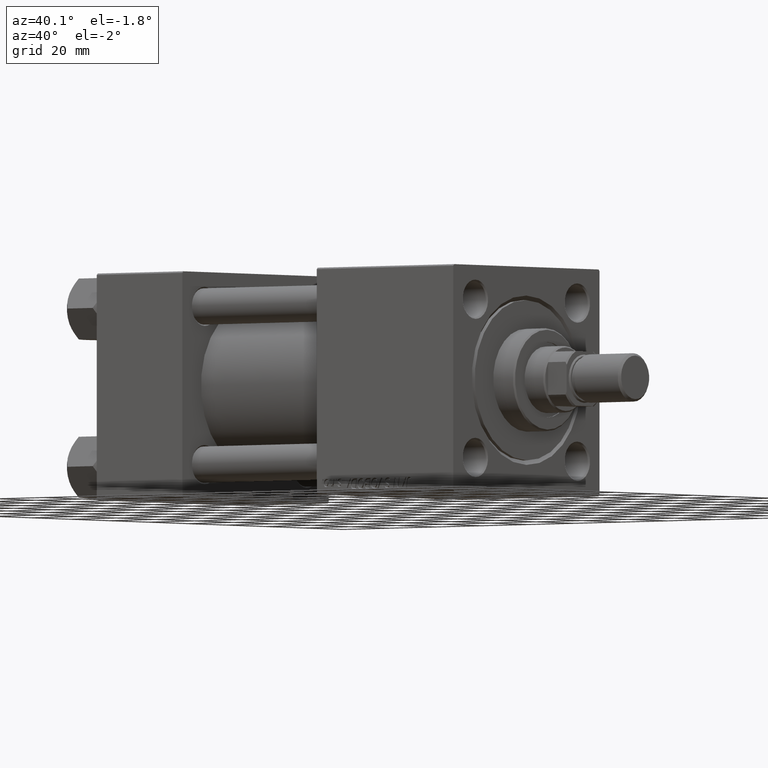
[diagram: clean part render]
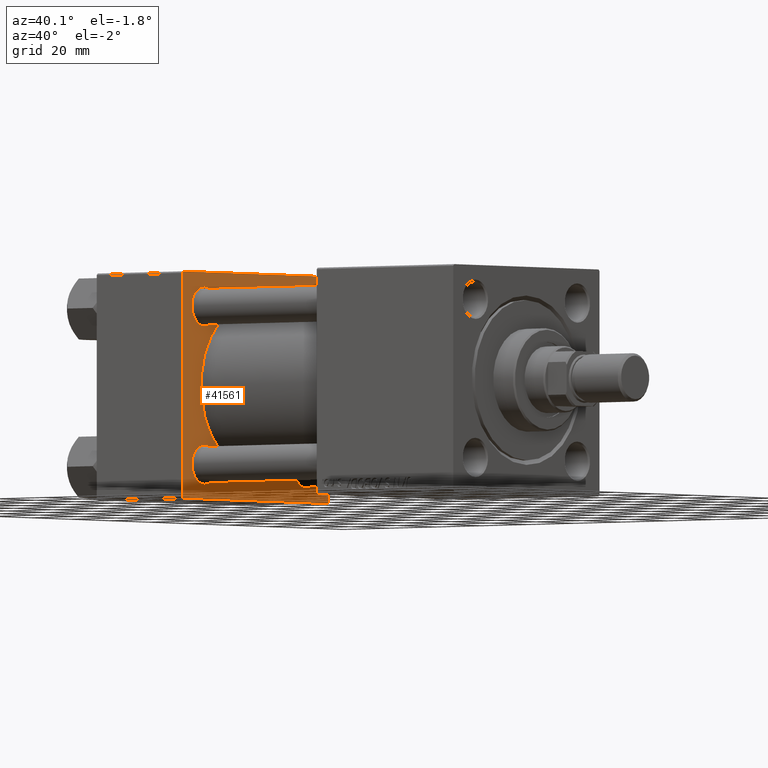
[diagram: same view with one face highlighted and labeled with its STEP entity id]
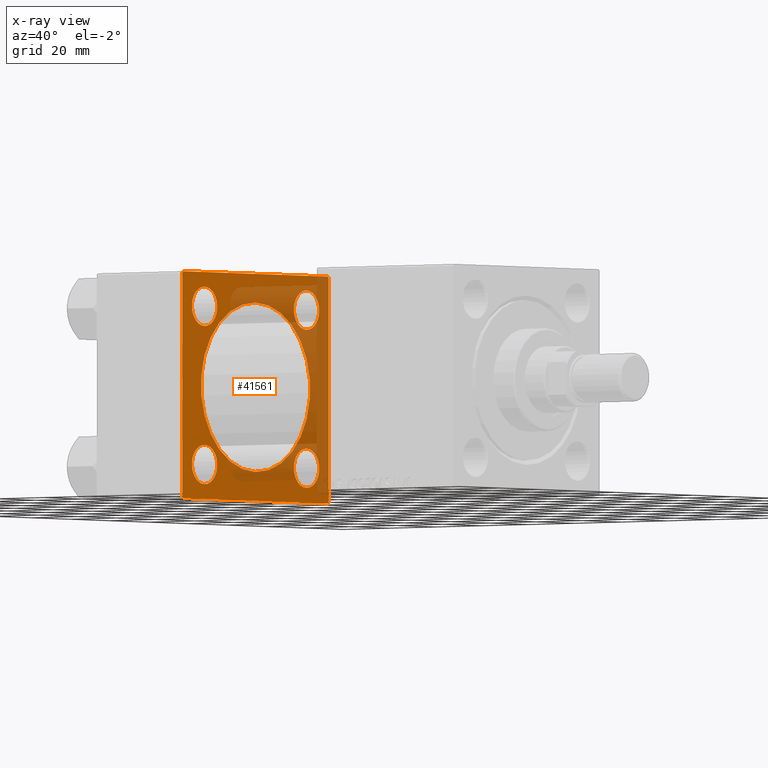
[diagram: x-ray of the same camera — body ghosted, the highlighted face saturated]
A machine part, auxiliary view. The second image highlights one B-rep face of the part: STEP entity #41561.
The next image is the same camera in x-ray: the body ghosted, the highlighted face saturated — about 42% of this face is hidden behind the body in this view.
In plain terms, the highlighted planar face has unit normal (-1, 0, 0).
Its self-contained STEP definition (entity closure, byte-faithful):
#17 = LINE ( 'NONE', #7709, #7635 ) ;
#151 = AXIS2_PLACEMENT_3D ( 'NONE', #48568, #14006, #37290 ) ;
#449 = CARTESIAN_POINT ( 'NONE',  ( 37.00000000000000000, 37.49999999999999289, 37.50000000000000000 ) ) ;
#486 = CIRCLE ( 'NONE', #33198, 6.500000000000030198 ) ;
#1691 = DIRECTION ( 'NONE',  ( 0.000000000000000000, 0.000000000000000000, 1.000000000000000000 ) ) ;
#2037 = DIRECTION ( 'NONE',  ( 0.000000000000000000, 0.7071067811865524577, -0.7071067811865426878 ) ) ;
#2289 = VERTEX_POINT ( 'NONE', #15442 ) ;
#3496 = ORIENTED_EDGE ( 'NONE', *, *, #27325, .T. ) ;
#3785 = CARTESIAN_POINT ( 'NONE',  ( 37.00000000000000000, -26.14999999999999147, 26.15000000000000924 ) ) ;
#4246 = CIRCLE ( 'NONE', #29587, 28.00000000000000000 ) ;
#4277 = EDGE_CURVE ( 'NONE', #42482, #5781, #13375, .T. ) ;
#4279 = CIRCLE ( 'NONE', #27984, 6.500000000000030198 ) ;
#4280 = AXIS2_PLACEMENT_3D ( 'NONE', #39578, #20128, #43659 ) ;
#4961 = ORIENTED_EDGE ( 'NONE', *, *, #39898, .T. ) ;
#5010 = FACE_OUTER_BOUND ( 'NONE', #14759, .T. ) ;
#5434 = ORIENTED_EDGE ( 'NONE', *, *, #9267, .T. ) ;
#5781 = VERTEX_POINT ( 'NONE', #36420 ) ;
#6061 = EDGE_LOOP ( 'NONE', ( #15241, #38181 ) ) ;
#6130 = CARTESIAN_POINT ( 'NONE',  ( 37.00000000000000000, -26.14999999999999147, -26.15000000000000924 ) ) ;
#6178 = CARTESIAN_POINT ( 'NONE',  ( 37.00000000000000000, -37.50000000000000711, 37.49999999999999289 ) ) ;
#6240 = VERTEX_POINT ( 'NONE', #42743 ) ;
#6554 = CARTESIAN_POINT ( 'NONE',  ( 37.00000000000000000, 26.14999999999999858, 26.15000000000000213 ) ) ;
#6863 = DIRECTION ( 'NONE',  ( 0.000000000000000000, 0.000000000000000000, 1.000000000000000000 ) ) ;
#6945 = CARTESIAN_POINT ( 'NONE',  ( 37.00000000000000000, 26.14999999999999858, -32.65000000000003411 ) ) ;
#7557 = ORIENTED_EDGE ( 'NONE', *, *, #39531, .T. ) ;
#7635 = VECTOR ( 'NONE', #18728, 1000.000000000000114 ) ;
#7709 = CARTESIAN_POINT ( 'NONE',  ( 37.00000000000000000, -37.50000000000000711, 36.99999999999999289 ) ) ;
#7993 = VECTOR ( 'NONE', #2037, 1000.000000000000000 ) ;
#8357 = FACE_BOUND ( 'NONE', #28992, .T. ) ;
#8625 = DIRECTION ( 'NONE',  ( 0.000000000000000000, -0.7071067811865474617, 0.7071067811865474617 ) ) ;
#8787 = VERTEX_POINT ( 'NONE', #37416 ) ;
#9108 = CARTESIAN_POINT ( 'NONE',  ( 37.00000000000000000, -2.602085213965210642E-15, 28.00000000000000000 ) ) ;
#9267 = EDGE_CURVE ( 'NONE', #39901, #50646, #12224, .T. ) ;
#9556 = CARTESIAN_POINT ( 'NONE',  ( 37.00000000000000000, -26.14999999999999147, -19.65000000000000924 ) ) ;
#10034 = LINE ( 'NONE', #6178, #26657 ) ;
#10239 = VERTEX_POINT ( 'NONE', #9108 ) ;
#10821 = CIRCLE ( 'NONE', #39445, 6.500000000000008882 ) ;
#11856 = VERTEX_POINT ( 'NONE', #40413 ) ;
#11949 = DIRECTION ( 'NONE',  ( -0.000000000000000000, 0.000000000000000000, 1.000000000000000000 ) ) ;
#12224 = CIRCLE ( 'NONE', #44106, 6.500000000000008882 ) ;
#12696 = FACE_BOUND ( 'NONE', #6061, .T. ) ;
#13375 = LINE ( 'NONE', #33066, #34092 ) ;
#14006 = DIRECTION ( 'NONE',  ( -1.000000000000000000, 0.000000000000000000, -0.000000000000000000 ) ) ;
#14069 = CARTESIAN_POINT ( 'NONE',  ( 37.00000000000000000, 36.99999999999999289, 37.50000000000000000 ) ) ;
#14077 = CIRCLE ( 'NONE', #20632, 6.500000000000030198 ) ;
#14315 = DIRECTION ( 'NONE',  ( 0.000000000000000000, 0.000000000000000000, 1.000000000000000000 ) ) ;
#14337 = CARTESIAN_POINT ( 'NONE',  ( 37.00000000000000000, -37.00000000000002132, -37.50000000000000711 ) ) ;
#14533 = ORIENTED_EDGE ( 'NONE', *, *, #27436, .T. ) ;
#14562 = DIRECTION ( 'NONE',  ( -1.000000000000000000, 0.000000000000000000, -0.000000000000000000 ) ) ;
#14735 = CARTESIAN_POINT ( 'NONE',  ( 37.00000000000000000, 8.269258236473776482E-16, -28.00000000000000000 ) ) ;
#14759 = EDGE_LOOP ( 'NONE', ( #36306, #50530, #24141, #27610, #4961, #28318, #7557, #17562 ) ) ;
#15241 = ORIENTED_EDGE ( 'NONE', *, *, #37172, .F. ) ;
#15442 = CARTESIAN_POINT ( 'NONE',  ( 37.00000000000000000, 37.49999999999999289, -36.99999999999998579 ) ) ;
#15502 = DIRECTION ( 'NONE',  ( 0.000000000000000000, 0.000000000000000000, 1.000000000000000000 ) ) ;
#15796 = ORIENTED_EDGE ( 'NONE', *, *, #26298, .T. ) ;
#16024 = CARTESIAN_POINT ( 'NONE',  ( 37.00000000000000000, 37.49999999999999289, 37.00000000000000000 ) ) ;
#16045 = FACE_BOUND ( 'NONE', #26087, .T. ) ;
#16086 = VECTOR ( 'NONE', #31447, 1000.000000000000000 ) ;
#16096 = DIRECTION ( 'NONE',  ( 0.000000000000000000, -1.000000000000000000, -9.251858538542971581E-17 ) ) ;
#16300 = FACE_BOUND ( 'NONE', #47385, .T. ) ;
#16328 = DIRECTION ( 'NONE',  ( 0.000000000000000000, 0.000000000000000000, 1.000000000000000000 ) ) ;
#16346 = LINE ( 'NONE', #449, #35659 ) ;
#16604 = VERTEX_POINT ( 'NONE', #19829 ) ;
#17336 = DIRECTION ( 'NONE',  ( -1.000000000000000000, 0.000000000000000000, -0.000000000000000000 ) ) ;
#17562 = ORIENTED_EDGE ( 'NONE', *, *, #47532, .T. ) ;
#18361 = CARTESIAN_POINT ( 'NONE',  ( 37.00000000000000000, -26.14999999999999147, 32.65000000000001990 ) ) ;
#18728 = DIRECTION ( 'NONE',  ( -0.000000000000000000, -0.7071067811865474617, -0.7071067811865474617 ) ) ;
#18825 = CARTESIAN_POINT ( 'NONE',  ( 37.00000000000000000, -2.602085213965210642E-15, 0.000000000000000000 ) ) ;
#19195 = EDGE_CURVE ( 'NONE', #44949, #10239, #4246, .T. ) ;
#19363 = CARTESIAN_POINT ( 'NONE',  ( 37.00000000000000000, -26.14999999999999147, -32.65000000000001279 ) ) ;
#19404 = EDGE_CURVE ( 'NONE', #42482, #2289, #33486, .T. ) ;
#19447 = LINE ( 'NONE', #50682, #16086 ) ;
#19518 = EDGE_CURVE ( 'NONE', #45984, #26936, #28569, .T. ) ;
#19829 = CARTESIAN_POINT ( 'NONE',  ( 37.00000000000000000, -37.50000000000000711, 36.99999999999999289 ) ) ;
#20128 = DIRECTION ( 'NONE',  ( -1.000000000000000000, 0.000000000000000000, -0.000000000000000000 ) ) ;
#20289 = EDGE_LOOP ( 'NONE', ( #21273, #42203 ) ) ;
#20632 = AXIS2_PLACEMENT_3D ( 'NONE', #42176, #34245, #6863 ) ;
#21186 = EDGE_CURVE ( 'NONE', #48555, #44996, #37814, .T. ) ;
#21273 = ORIENTED_EDGE ( 'NONE', *, *, #23868, .T. ) ;
#22230 = CIRCLE ( 'NONE', #151, 6.500000000000030198 ) ;
#23686 = DIRECTION ( 'NONE',  ( 1.000000000000000000, -0.000000000000000000, 0.000000000000000000 ) ) ;
#23868 = EDGE_CURVE ( 'NONE', #44996, #48555, #25395, .T. ) ;
#24141 = ORIENTED_EDGE ( 'NONE', *, *, #40781, .F. ) ;
#24986 = AXIS2_PLACEMENT_3D ( 'NONE', #35239, #39089, #11949 ) ;
#25395 = CIRCLE ( 'NONE', #44212, 6.500000000000002665 ) ;
#25958 = DIRECTION ( 'NONE',  ( 0.000000000000000000, 0.000000000000000000, 1.000000000000000000 ) ) ;
#26087 = EDGE_LOOP ( 'NONE', ( #3496, #15796 ) ) ;
#26298 = EDGE_CURVE ( 'NONE', #11856, #40235, #22230, .T. ) ;
#26657 = VECTOR ( 'NONE', #34074, 1000.000000000000000 ) ;
#26936 = VERTEX_POINT ( 'NONE', #14069 ) ;
#27325 = EDGE_CURVE ( 'NONE', #40235, #11856, #14077, .T. ) ;
#27436 = EDGE_CURVE ( 'NONE', #50646, #39901, #10821, .T. ) ;
#27610 = ORIENTED_EDGE ( 'NONE', *, *, #19518, .T. ) ;
#27869 = VERTEX_POINT ( 'NONE', #34066 ) ;
#27984 = AXIS2_PLACEMENT_3D ( 'NONE', #6554, #17336, #1691 ) ;
#28318 = ORIENTED_EDGE ( 'NONE', *, *, #32748, .T. ) ;
#28569 = LINE ( 'NONE', #43946, #41029 ) ;
#28844 = VERTEX_POINT ( 'NONE', #29276 ) ;
#28992 = EDGE_LOOP ( 'NONE', ( #5434, #14533 ) ) ;
#29276 = CARTESIAN_POINT ( 'NONE',  ( 37.00000000000000000, -37.50000000000000000, -37.00000000000003553 ) ) ;
#29587 = AXIS2_PLACEMENT_3D ( 'NONE', #42793, #34340, #50490 ) ;
#30697 = DIRECTION ( 'NONE',  ( -1.000000000000000000, 0.000000000000000000, -0.000000000000000000 ) ) ;
#31151 = EDGE_CURVE ( 'NONE', #6240, #27869, #4279, .T. ) ;
#31447 = DIRECTION ( 'NONE',  ( 0.000000000000000000, 0.000000000000000000, -1.000000000000000000 ) ) ;
#31638 = FACE_BOUND ( 'NONE', #20289, .T. ) ;
#31685 = CARTESIAN_POINT ( 'NONE',  ( 37.00000000000000000, -26.14999999999999147, 19.65000000000000213 ) ) ;
#32748 = EDGE_CURVE ( 'NONE', #8787, #16604, #17, .T. ) ;
#32816 = DIRECTION ( 'NONE',  ( 0.000000000000000000, -1.000000000000000000, -9.251858538542972814E-17 ) ) ;
#33066 = CARTESIAN_POINT ( 'NONE',  ( 37.00000000000000000, 37.49999999999999289, -37.50000000000000000 ) ) ;
#33198 = AXIS2_PLACEMENT_3D ( 'NONE', #41191, #14562, #14315 ) ;
#33486 = LINE ( 'NONE', #37575, #48381 ) ;
#34066 = CARTESIAN_POINT ( 'NONE',  ( 37.00000000000000000, 26.14999999999999858, 19.64999999999997016 ) ) ;
#34074 = DIRECTION ( 'NONE',  ( 0.000000000000000000, 9.251858538542971581E-17, -1.000000000000000000 ) ) ;
#34092 = VECTOR ( 'NONE', #32816, 1000.000000000000000 ) ;
#34245 = DIRECTION ( 'NONE',  ( -1.000000000000000000, 0.000000000000000000, -0.000000000000000000 ) ) ;
#34340 = DIRECTION ( 'NONE',  ( 1.000000000000000000, -0.000000000000000000, 0.000000000000000000 ) ) ;
#34664 = DIRECTION ( 'NONE',  ( -1.000000000000000000, 0.000000000000000000, -0.000000000000000000 ) ) ;
#35019 = DIRECTION ( 'NONE',  ( -1.000000000000000000, 0.000000000000000000, -0.000000000000000000 ) ) ;
#35239 = CARTESIAN_POINT ( 'NONE',  ( 37.00000000000000000, 0.000000000000000000, 0.000000000000000000 ) ) ;
#35659 = VECTOR ( 'NONE', #16096, 1000.000000000000000 ) ;
#35991 = PLANE ( 'NONE',  #24986 ) ;
#36306 = ORIENTED_EDGE ( 'NONE', *, *, #4277, .F. ) ;
#36420 = CARTESIAN_POINT ( 'NONE',  ( 37.00000000000000000, -37.00000000000002132, -37.50000000000000711 ) ) ;
#36867 = LINE ( 'NONE', #14337, #7993 ) ;
#37172 = EDGE_CURVE ( 'NONE', #10239, #44949, #48670, .T. ) ;
#37290 = DIRECTION ( 'NONE',  ( 0.000000000000000000, 0.000000000000000000, 1.000000000000000000 ) ) ;
#37330 = DIRECTION ( 'NONE',  ( -0.000000000000000000, 0.7071067811865474617, 0.7071067811865474617 ) ) ;
#37416 = CARTESIAN_POINT ( 'NONE',  ( 37.00000000000000000, -37.00000000000000711, 37.49999999999999289 ) ) ;
#37575 = CARTESIAN_POINT ( 'NONE',  ( 37.00000000000000000, 37.49999999999999289, -36.99999999999998579 ) ) ;
#37814 = CIRCLE ( 'NONE', #4280, 6.500000000000002665 ) ;
#38181 = ORIENTED_EDGE ( 'NONE', *, *, #19195, .F. ) ;
#39089 = DIRECTION ( 'NONE',  ( -1.000000000000000000, 0.000000000000000000, -0.000000000000000000 ) ) ;
#39445 = AXIS2_PLACEMENT_3D ( 'NONE', #3785, #35019, #16328 ) ;
#39531 = EDGE_CURVE ( 'NONE', #16604, #28844, #10034, .T. ) ;
#39578 = CARTESIAN_POINT ( 'NONE',  ( 37.00000000000000000, -26.14999999999999147, -26.15000000000000924 ) ) ;
#39649 = AXIS2_PLACEMENT_3D ( 'NONE', #18825, #23686, #15502 ) ;
#39726 = EDGE_CURVE ( 'NONE', #27869, #6240, #486, .T. ) ;
#39898 = EDGE_CURVE ( 'NONE', #26936, #8787, #16346, .T. ) ;
#39901 = VERTEX_POINT ( 'NONE', #31685 ) ;
#40235 = VERTEX_POINT ( 'NONE', #6945 ) ;
#40413 = CARTESIAN_POINT ( 'NONE',  ( 37.00000000000000000, 26.14999999999999858, -19.64999999999997371 ) ) ;
#40758 = ORIENTED_EDGE ( 'NONE', *, *, #31151, .T. ) ;
#40781 = EDGE_CURVE ( 'NONE', #45984, #2289, #19447, .T. ) ;
#41029 = VECTOR ( 'NONE', #8625, 1000.000000000000114 ) ;
#41191 = CARTESIAN_POINT ( 'NONE',  ( 37.00000000000000000, 26.14999999999999858, 26.15000000000000213 ) ) ;
#41561 = ADVANCED_FACE ( 'NONE', ( #31638, #16045, #8357, #16300, #12696, #5010 ), #35991, .F. ) ;
#41830 = CARTESIAN_POINT ( 'NONE',  ( 37.00000000000000000, -26.14999999999999147, 26.15000000000000924 ) ) ;
#42176 = CARTESIAN_POINT ( 'NONE',  ( 37.00000000000000000, 26.14999999999999858, -26.15000000000000213 ) ) ;
#42203 = ORIENTED_EDGE ( 'NONE', *, *, #21186, .T. ) ;
#42482 = VERTEX_POINT ( 'NONE', #49658 ) ;
#42743 = CARTESIAN_POINT ( 'NONE',  ( 37.00000000000000000, 26.14999999999999858, 32.65000000000004121 ) ) ;
#42793 = CARTESIAN_POINT ( 'NONE',  ( 37.00000000000000000, -2.602085213965210642E-15, 0.000000000000000000 ) ) ;
#43659 = DIRECTION ( 'NONE',  ( 0.000000000000000000, 0.000000000000000000, 1.000000000000000000 ) ) ;
#43946 = CARTESIAN_POINT ( 'NONE',  ( 37.00000000000000000, 36.99999999999999289, 37.50000000000000000 ) ) ;
#44106 = AXIS2_PLACEMENT_3D ( 'NONE', #41830, #34664, #25958 ) ;
#44212 = AXIS2_PLACEMENT_3D ( 'NONE', #6130, #30697, #49158 ) ;
#44949 = VERTEX_POINT ( 'NONE', #14735 ) ;
#44996 = VERTEX_POINT ( 'NONE', #19363 ) ;
#45984 = VERTEX_POINT ( 'NONE', #16024 ) ;
#47385 = EDGE_LOOP ( 'NONE', ( #50689, #40758 ) ) ;
#47532 = EDGE_CURVE ( 'NONE', #28844, #5781, #36867, .T. ) ;
#48381 = VECTOR ( 'NONE', #37330, 1000.000000000000114 ) ;
#48555 = VERTEX_POINT ( 'NONE', #9556 ) ;
#48568 = CARTESIAN_POINT ( 'NONE',  ( 37.00000000000000000, 26.14999999999999858, -26.15000000000000213 ) ) ;
#48670 = CIRCLE ( 'NONE', #39649, 28.00000000000000000 ) ;
#49158 = DIRECTION ( 'NONE',  ( 0.000000000000000000, 0.000000000000000000, 1.000000000000000000 ) ) ;
#49658 = CARTESIAN_POINT ( 'NONE',  ( 37.00000000000000000, 36.99999999999997868, -37.50000000000000000 ) ) ;
#50490 = DIRECTION ( 'NONE',  ( 0.000000000000000000, 0.000000000000000000, 1.000000000000000000 ) ) ;
#50530 = ORIENTED_EDGE ( 'NONE', *, *, #19404, .T. ) ;
#50646 = VERTEX_POINT ( 'NONE', #18361 ) ;
#50682 = CARTESIAN_POINT ( 'NONE',  ( 37.00000000000000000, 37.49999999999999289, 37.50000000000000000 ) ) ;
#50689 = ORIENTED_EDGE ( 'NONE', *, *, #39726, .T. ) ;